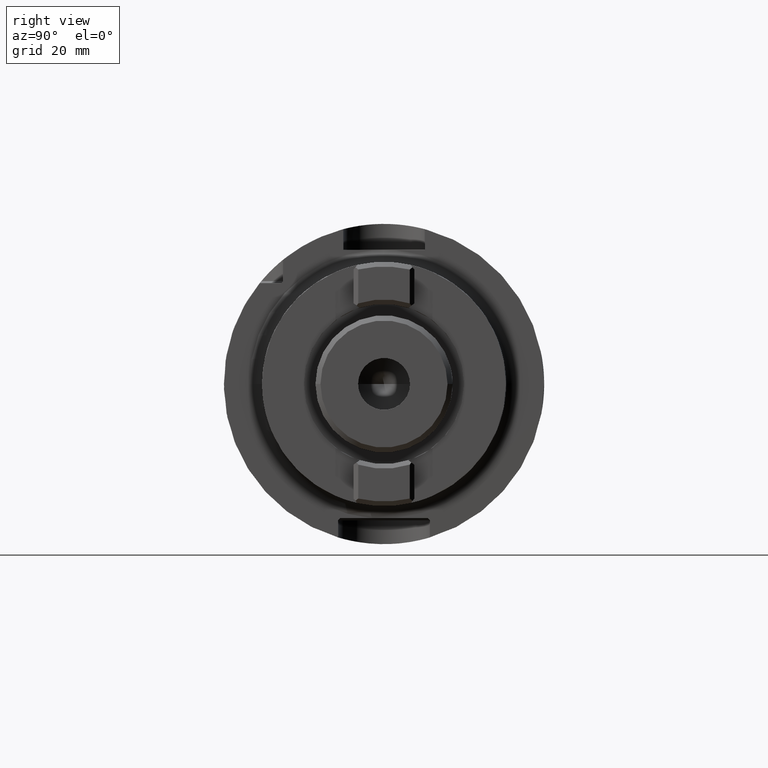
[diagram: clean part render]
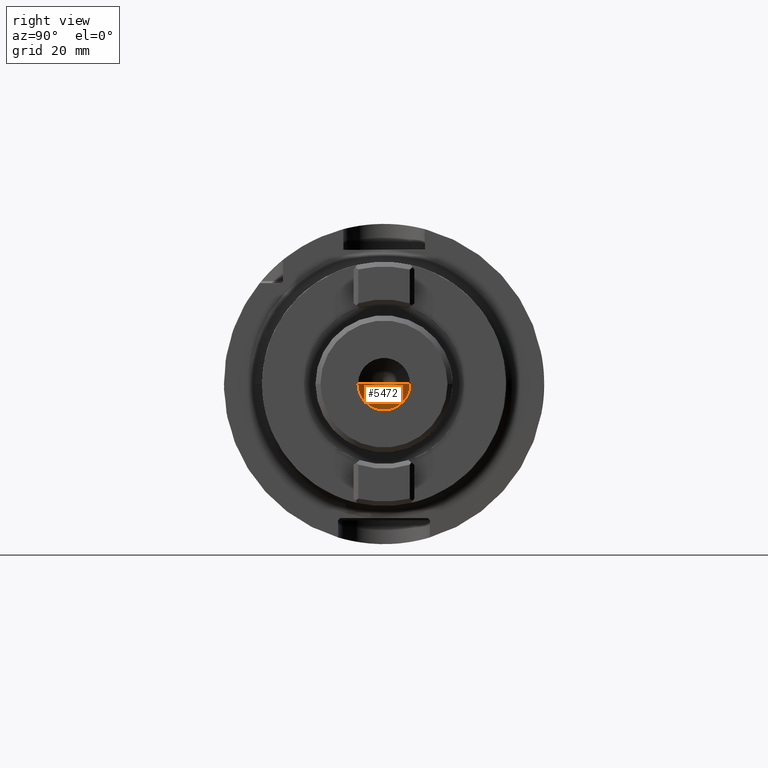
[diagram: same view with one face highlighted and labeled with its STEP entity id]
A machine part, right view. The second image highlights one B-rep face of the part: STEP entity #5472.
In plain terms, the highlighted conical surface has half-angle 59 deg.
Its self-contained STEP definition (entity closure, byte-faithful):
#1880=CARTESIAN_POINT('',(3.15E1,0.E0,0.E0));
#1881=DIRECTION('',(1.E0,0.E0,0.E0));
#1882=DIRECTION('',(0.E0,-1.E0,0.E0));
#1883=AXIS2_PLACEMENT_3D('',#1880,#1881,#1882);
#1898=DIRECTION('',(5.150380749101E-1,-8.571673007021E-1,0.E0));
#1899=VECTOR('',#1898,5.949830325798E0);
#1900=CARTESIAN_POINT('',(2.843561084296E1,0.E0,0.E0));
#1901=LINE('',#1900,#1899);
#1902=DIRECTION('',(5.150380749101E-1,8.571673007021E-1,0.E0));
#1903=VECTOR('',#1902,5.949830325798E0);
#1904=CARTESIAN_POINT('',(2.843561084296E1,0.E0,0.E0));
#1905=LINE('',#1904,#1903);
#3437=CARTESIAN_POINT('',(2.843561084296E1,0.E0,0.E0));
#3438=CARTESIAN_POINT('',(3.15E1,-5.1E0,0.E0));
#3439=VERTEX_POINT('',#3437);
#3440=VERTEX_POINT('',#3438);
#3441=CARTESIAN_POINT('',(3.15E1,5.1E0,0.E0));
#3442=VERTEX_POINT('',#3441);
#5462=CARTESIAN_POINT('',(2.996780542148E1,0.E0,0.E0));
#5463=DIRECTION('',(1.E0,0.E0,0.E0));
#5464=DIRECTION('',(0.E0,-1.E0,0.E0));
#5465=AXIS2_PLACEMENT_3D('',#5462,#5463,#5464);
#5466=CONICAL_SURFACE('',#5465,2.55E0,5.9E1);
#5467=ORIENTED_EDGE('',*,*,#5454,.F.);
#5468=ORIENTED_EDGE('',*,*,#5457,.T.);
#5469=ORIENTED_EDGE('',*,*,#5429,.F.);
#5470=EDGE_LOOP('',(#5467,#5468,#5469));
#5471=FACE_OUTER_BOUND('',#5470,.F.);
#5472=ADVANCED_FACE('',(#5471),#5466,.F.);
#1884=CIRCLE('',#1883,5.1E0);
#5429=EDGE_CURVE('',#3440,#3442,#1884,.T.);
#5454=EDGE_CURVE('',#3439,#3440,#1901,.T.);
#5457=EDGE_CURVE('',#3439,#3442,#1905,.T.);